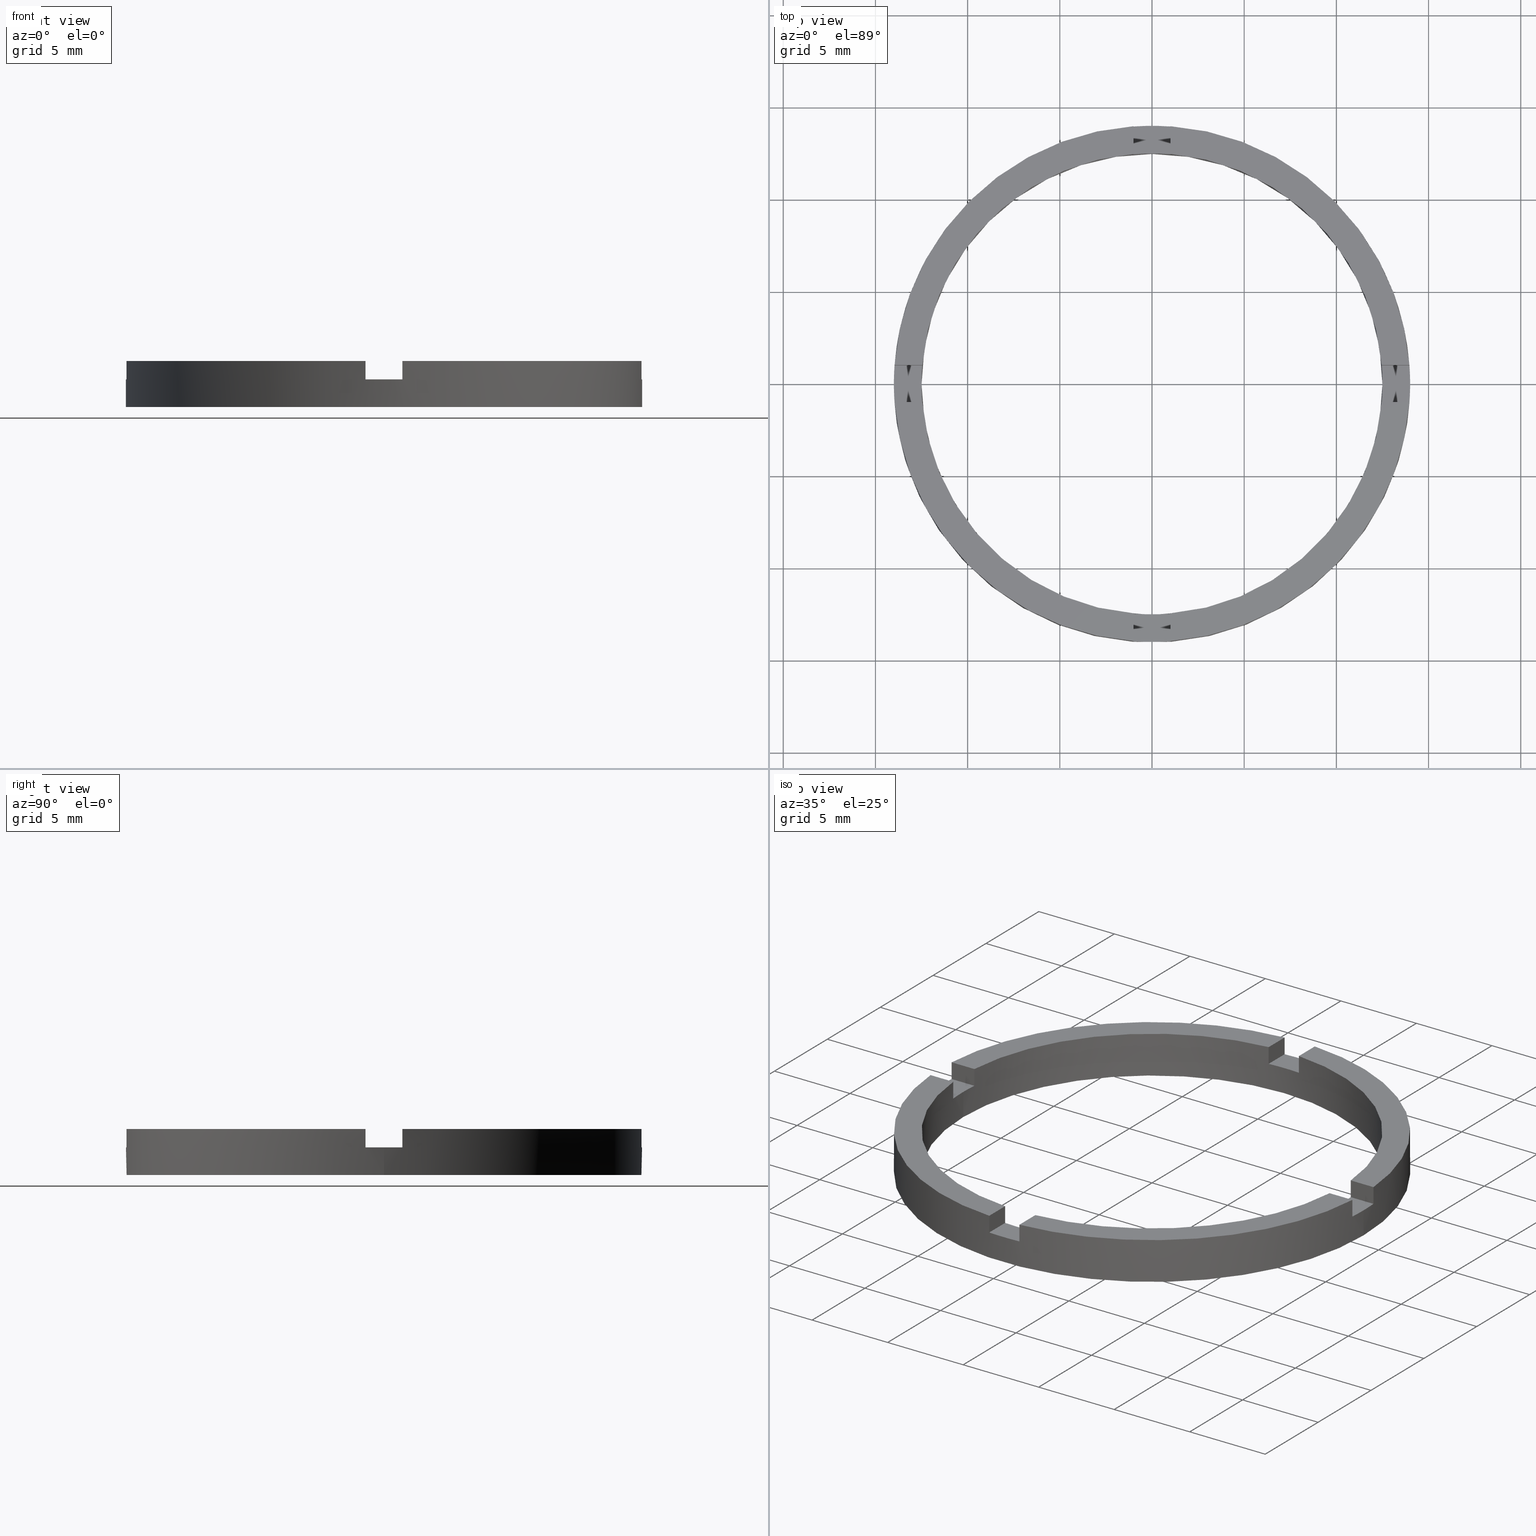
[diagram: canonical four-view strip — front | top / right | iso, engineering-drawing reading convention]
A machine part, canonical four-view strip (front | top / right | iso — engineering-drawing reading convention). The complete STEP part file that produces these views, byte-faithful:
ISO-10303-21;
HEADER;
FILE_DESCRIPTION (( 'STEP AP203' ),
    '1' );
FILE_NAME ('514063.step',
    '2024-12-26T02:34:01',
    ( 'MSI' ),
    ( '' ),
    'SwSTEP 2.0',
    'SolidWorks 2020',
    '' );
FILE_SCHEMA (( 'CONFIG_CONTROL_DESIGN' ));
ENDSEC;

DATA;
#1 = CARTESIAN_POINT ( 'NONE',  ( 0.000000000000000000, 0.000000000000000000, 1.500000000000000000 ) ) ;
#2 = ORIENTED_EDGE ( 'NONE', *, *, #305, .F. ) ;
#3 = DIRECTION ( 'NONE',  ( 0.000000000000000000, 0.000000000000000000, 1.000000000000000000 ) ) ;
#4 = ORIENTED_EDGE ( 'NONE', *, *, #599, .F. ) ;
#5 = AXIS2_PLACEMENT_3D ( 'NONE', #74, #417, #493 ) ;
#6 = EDGE_LOOP ( 'NONE', ( #517, #149, #376, #421 ) ) ;
#7 = DIRECTION ( 'NONE',  ( 0.000000000000000000, 0.000000000000000000, 1.000000000000000000 ) ) ;
#8 = VERTEX_POINT ( 'NONE', #79 ) ;
#9 = DIRECTION ( 'NONE',  ( 1.301042606982605321E-16, -1.000000000000000000, 0.000000000000000000 ) ) ;
#10 = CARTESIAN_POINT ( 'NONE',  ( 0.9999999999999753530, 12.45993579437711674, 1.500000000000000000 ) ) ;
#11 = EDGE_LOOP ( 'NONE', ( #131, #644, #528, #523 ) ) ;
#12 = DIRECTION ( 'NONE',  ( 0.000000000000000000, 0.000000000000000000, 1.000000000000000000 ) ) ;
#13 = DIRECTION ( 'NONE',  ( 1.000000000000000000, 1.734723475976807094E-16, -0.000000000000000000 ) ) ;
#14 = DIRECTION ( 'NONE',  ( 0.000000000000000000, 0.000000000000000000, 1.000000000000000000 ) ) ;
#15 = CC_DESIGN_APPROVAL ( #232, ( #522 ) ) ;
#16 = CARTESIAN_POINT ( 'NONE',  ( 0.9999999999998366862, -13.96424004376895311, 2.500000000000000000 ) ) ;
#17 = CARTESIAN_POINT ( 'NONE',  ( 0.000000000000000000, 0.000000000000000000, 1.500000000000000000 ) ) ;
#18 = DIRECTION ( 'NONE',  ( -0.000000000000000000, -0.000000000000000000, -1.000000000000000000 ) ) ;
#19 = DIRECTION ( 'NONE',  ( 0.000000000000000000, 0.000000000000000000, 1.000000000000000000 ) ) ;
#20 = DIRECTION ( 'NONE',  ( 0.000000000000000000, 0.000000000000000000, 1.000000000000000000 ) ) ;
#21 = DIRECTION ( 'NONE',  ( 0.000000000000000000, 0.000000000000000000, 1.000000000000000000 ) ) ;
#22 = EDGE_CURVE ( 'NONE', #123, #144, #452, .T. ) ;
#23 = CARTESIAN_POINT ( 'NONE',  ( 0.000000000000000000, 0.000000000000000000, 0.000000000000000000 ) ) ;
#24 = EDGE_CURVE ( 'NONE', #386, #441, #661, .T. ) ;
#25 = AXIS2_PLACEMENT_3D ( 'NONE', #210, #20, #349 ) ;
#26 = EDGE_CURVE ( 'NONE', #180, #123, #418, .T. ) ;
#27 = PLANE ( 'NONE',  #747 ) ;
#28 = DIRECTION ( 'NONE',  ( 0.000000000000000000, -0.000000000000000000, 1.000000000000000000 ) ) ;
#29 = DIRECTION ( 'NONE',  ( 0.000000000000000000, 0.000000000000000000, 1.000000000000000000 ) ) ;
#30 = CARTESIAN_POINT ( 'NONE',  ( 0.000000000000000000, 0.000000000000000000, 2.500000000000000000 ) ) ;
#31 = CC_DESIGN_APPROVAL ( #342, ( #281 ) ) ;
#32 = ADVANCED_FACE ( 'NONE', ( #732 ), #483, .F. ) ;
#33 = EDGE_CURVE ( 'NONE', #752, #155, #222, .T. ) ;
#34 = DIRECTION ( 'NONE',  ( 1.000000000000000000, 0.000000000000000000, 0.000000000000000000 ) ) ;
#35 = PLANE ( 'NONE',  #367 ) ;
#36 = DIRECTION ( 'NONE',  ( 0.000000000000000000, 0.000000000000000000, 1.000000000000000000 ) ) ;
#37 = CARTESIAN_POINT ( 'NONE',  ( -13.96424004376894068, -1.000000000000022871, 1.500000000000000000 ) ) ;
#38 = AXIS2_PLACEMENT_3D ( 'NONE', #371, #529, #569 ) ;
#39 = DIRECTION ( 'NONE',  ( 1.301042606982605321E-16, -1.000000000000000000, 0.000000000000000000 ) ) ;
#40 = CARTESIAN_POINT ( 'NONE',  ( 14.00000000000000000, 1.714505518806294638E-15, 1.500000000000000000 ) ) ;
#41 = PLANE ( 'NONE',  #219 ) ;
#42 = CARTESIAN_POINT ( 'NONE',  ( 13.96424004376895311, 0.9999999999998404610, 2.500000000000000000 ) ) ;
#43 = PLANE ( 'NONE',  #738 ) ;
#44 = EDGE_CURVE ( 'NONE', #278, #524, #476, .T. ) ;
#45 = DIRECTION ( 'NONE',  ( 1.000000000000000000, 0.000000000000000000, 0.000000000000000000 ) ) ;
#46 = PLANE ( 'NONE',  #422 ) ;
#47 = AXIS2_PLACEMENT_3D ( 'NONE', #621, #715, #495 ) ;
#48 = DIRECTION ( 'NONE',  ( 0.000000000000000000, 0.000000000000000000, 1.000000000000000000 ) ) ;
#49 = AXIS2_PLACEMENT_3D ( 'NONE', #544, #434, #589 ) ;
#50 = CARTESIAN_POINT ( 'NONE',  ( -12.45993579437711496, 0.9999999999999774625, 2.500000000000000000 ) ) ;
#51 = CARTESIAN_POINT ( 'NONE',  ( -13.96424004376894068, -1.000000000000022871, 2.500000000000000000 ) ) ;
#52 = CARTESIAN_POINT ( 'NONE',  ( 0.000000000000000000, 0.000000000000000000, 1.500000000000000000 ) ) ;
#53 = EDGE_CURVE ( 'NONE', #525, #514, #713, .T. ) ;
#54 = PLANE ( 'NONE',  #693 ) ;
#55 = DIRECTION ( 'NONE',  ( 0.000000000000000000, -0.000000000000000000, 1.000000000000000000 ) ) ;
#56 = CARTESIAN_POINT ( 'NONE',  ( -1.000000000000024647, 12.45993579437711141, 1.500000000000000000 ) ) ;
#57 = PERSON_AND_ORGANIZATION_ROLE ( 'design_owner' ) ;
#58 = EDGE_CURVE ( 'NONE', #441, #231, #734, .T. ) ;
#59 = DIRECTION ( 'NONE',  ( 1.000000000000000000, 0.000000000000000000, -0.000000000000000000 ) ) ;
#60 = ADVANCED_FACE ( 'NONE', ( #214 ), #27, .F. ) ;
#61 = DIRECTION ( 'NONE',  ( -1.000000000000000000, 0.000000000000000000, 0.000000000000000000 ) ) ;
#62 = CC_DESIGN_PERSON_AND_ORGANIZATION_ASSIGNMENT ( #360, #556, ( #522 ) ) ;
#63 = CARTESIAN_POINT ( 'NONE',  ( -1.000000000000024647, 12.45993579437711141, 2.500000000000000000 ) ) ;
#64 = AXIS2_PLACEMENT_3D ( 'NONE', #781, #177, #572 ) ;
#65 = CARTESIAN_POINT ( 'NONE',  ( 0.9999999999999753530, 4.000000000000000000, 1.500000000000000000 ) ) ;
#66 = DIRECTION ( 'NONE',  ( 1.000000000000000000, 0.000000000000000000, 0.000000000000000000 ) ) ;
#67 = EDGE_CURVE ( 'NONE', #488, #233, #718, .T. ) ;
#68 = EDGE_CURVE ( 'NONE', #389, #231, #485, .T. ) ;
#69 = DIRECTION ( 'NONE',  ( 1.000000000000000000, 0.000000000000000000, -0.000000000000000000 ) ) ;
#70 = APPROVAL_DATE_TIME ( #83, #232 ) ;
#71 = CARTESIAN_POINT ( 'NONE',  ( -13.96424004376894246, 0.9999999999999772404, 2.500000000000000000 ) ) ;
#72 = DIRECTION ( 'NONE',  ( 0.000000000000000000, 0.000000000000000000, 1.000000000000000000 ) ) ;
#73 = AXIS2_PLACEMENT_3D ( 'NONE', #538, #28, #290 ) ;
#74 = CARTESIAN_POINT ( 'NONE',  ( 0.000000000000000000, 0.000000000000000000, 1.500000000000000000 ) ) ;
#75 = DIRECTION ( 'NONE',  ( -1.000000000000000000, -4.336808689942017736E-17, 0.000000000000000000 ) ) ;
#76 = CARTESIAN_POINT ( 'NONE',  ( -14.00000000000000000, 0.000000000000000000, 1.500000000000000000 ) ) ;
#77 = ORIENTED_EDGE ( 'NONE', *, *, #462, .F. ) ;
#78 = EDGE_CURVE ( 'NONE', #386, #778, #739, .T. ) ;
#79 = CARTESIAN_POINT ( 'NONE',  ( 12.50000000000000000, 1.530808498934191521E-15, 0.000000000000000000 ) ) ;
#80 = DIRECTION ( 'NONE',  ( 1.000000000000000000, 0.000000000000000000, 0.000000000000000000 ) ) ;
#81 = DIRECTION ( 'NONE',  ( -0.000000000000000000, -0.000000000000000000, -1.000000000000000000 ) ) ;
#82 = DIRECTION ( 'NONE',  ( 1.000000000000000000, 1.734723475976807094E-16, 0.000000000000000000 ) ) ;
#83 = DATE_AND_TIME ( #347, #340 ) ;
#84 = PLANE ( 'NONE',  #561 ) ;
#85 = DIRECTION ( 'NONE',  ( 0.000000000000000000, -0.000000000000000000, 1.000000000000000000 ) ) ;
#86 = LOCAL_TIME ( 10, 34, 1.000000000000000000, #88 ) ;
#87 = EDGE_CURVE ( 'NONE', #745, #394, #216, .T. ) ;
#88 = COORDINATED_UNIVERSAL_TIME_OFFSET ( 8, 0, .AHEAD. ) ;
#89 = CARTESIAN_POINT ( 'NONE',  ( -12.45993579437711141, -1.000000000000022649, 2.500000000000000000 ) ) ;
#90 = CARTESIAN_POINT ( 'NONE',  ( 0.9999999999998354649, -4.000000000000180300, 2.500000000000000000 ) ) ;
#91 = PERSON_AND_ORGANIZATION ( #224, #626 ) ;
#92 = DIRECTION ( 'NONE',  ( -1.000000000000000000, -1.301042606982605321E-16, 0.000000000000000000 ) ) ;
#93 = DATE_AND_TIME ( #363, #86 ) ;
#94 = ORIENTED_EDGE ( 'NONE', *, *, #68, .F. ) ;
#95 = CARTESIAN_POINT ( 'NONE',  ( 0.9999999999998354649, -4.000000000000180300, 1.500000000000000000 ) ) ;
#96 = CARTESIAN_POINT ( 'NONE',  ( -1.000000000000163203, -13.96424004376893002, 2.500000000000000000 ) ) ;
#97 = COORDINATED_UNIVERSAL_TIME_OFFSET ( 8, 0, .AHEAD. ) ;
#98 = CARTESIAN_POINT ( 'NONE',  ( 12.45993579437712739, 0.9999999999998402389, 2.500000000000000000 ) ) ;
#99 = AXIS2_PLACEMENT_3D ( 'NONE', #30, #234, #486 ) ;
#100 = PERSON_AND_ORGANIZATION_ROLE ( 'creator' ) ;
#101 = ORIENTED_EDGE ( 'NONE', *, *, #398, .T. ) ;
#102 = CARTESIAN_POINT ( 'NONE',  ( 0.000000000000000000, 0.000000000000000000, 2.500000000000000000 ) ) ;
#103 = ORIENTED_EDGE ( 'NONE', *, *, #283, .T. ) ;
#104 = PLANE ( 'NONE',  #269 ) ;
#105 = ORIENTED_EDGE ( 'NONE', *, *, #508, .T. ) ;
#106 = ADVANCED_FACE ( 'NONE', ( #722 ), #208, .T. ) ;
#107 = EDGE_CURVE ( 'NONE', #384, #148, #468, .T. ) ;
#108 = APPLICATION_PROTOCOL_DEFINITION ( 'international standard', 'config_control_design', 1994, #510 ) ;
#109 = ORIENTED_EDGE ( 'NONE', *, *, #583, .T. ) ;
#110 = LINE ( 'NONE', #594, #118 ) ;
#111 = CARTESIAN_POINT ( 'NONE',  ( 0.000000000000000000, 0.000000000000000000, 2.500000000000000000 ) ) ;
#112 = CIRCLE ( 'NONE', #116, 14.00000000000000000 ) ;
#113 = EDGE_CURVE ( 'NONE', #123, #268, #227, .T. ) ;
#114 = PERSON_AND_ORGANIZATION ( #224, #626 ) ;
#115 = FACE_OUTER_BOUND ( 'NONE', #665, .T. ) ;
#116 = AXIS2_PLACEMENT_3D ( 'NONE', #111, #316, #359 ) ;
#117 = ORIENTED_EDGE ( 'NONE', *, *, #743, .F. ) ;
#118 = VECTOR ( 'NONE', #518, 1000.000000000000000 ) ;
#119 = ORIENTED_EDGE ( 'NONE', *, *, #58, .T. ) ;
#120 = LINE ( 'NONE', #122, #373 ) ;
#121 = EDGE_LOOP ( 'NONE', ( #261, #698, #348, #631 ) ) ;
#122 = CARTESIAN_POINT ( 'NONE',  ( 12.45993579437710075, -1.000000000000159872, 2.500000000000000000 ) ) ;
#123 = VERTEX_POINT ( 'NONE', #303 ) ;
#124 = EDGE_LOOP ( 'NONE', ( #669, #134, #690, #761 ) ) ;
#125 = ORIENTED_EDGE ( 'NONE', *, *, #562, .T. ) ;
#126 = VECTOR ( 'NONE', #187, 1000.000000000000000 ) ;
#127 = ORIENTED_EDGE ( 'NONE', *, *, #508, .F. ) ;
#128 = FACE_BOUND ( 'NONE', #243, .T. ) ;
#129 = CLOSED_SHELL ( 'NONE', ( #32, #578, #167, #482, #106, #408, #540, #559, #657, #771, #614, #241, #279, #299, #236, #537, #175, #292, #705, #60, #245 ) ) ;
#130 = VECTOR ( 'NONE', #590, 1000.000000000000000 ) ;
#131 = ORIENTED_EDGE ( 'NONE', *, *, #26, .F. ) ;
#132 = AXIS2_PLACEMENT_3D ( 'NONE', #704, #36, #66 ) ;
#133 = COORDINATED_UNIVERSAL_TIME_OFFSET ( 8, 0, .AHEAD. ) ;
#134 = ORIENTED_EDGE ( 'NONE', *, *, #171, .T. ) ;
#135 = ORIENTED_EDGE ( 'NONE', *, *, #447, .T. ) ;
#136 = ORIENTED_EDGE ( 'NONE', *, *, #736, .T. ) ;
#137 = FACE_OUTER_BOUND ( 'NONE', #121, .T. ) ;
#138 = ORIENTED_EDGE ( 'NONE', *, *, #531, .F. ) ;
#139 = CIRCLE ( 'NONE', #541, 12.50000000000000000 ) ;
#140 = ORIENTED_EDGE ( 'NONE', *, *, #628, .F. ) ;
#141 = ORIENTED_EDGE ( 'NONE', *, *, #648, .T. ) ;
#142 = COORDINATED_UNIVERSAL_TIME_OFFSET ( 8, 0, .AHEAD. ) ;
#143 = ORIENTED_EDGE ( 'NONE', *, *, #385, .T. ) ;
#144 = VERTEX_POINT ( 'NONE', #71 ) ;
#145 = VERTEX_POINT ( 'NONE', #42 ) ;
#146 = CARTESIAN_POINT ( 'NONE',  ( -1.000000000000024647, 13.96424004376894068, 1.500000000000000000 ) ) ;
#147 = ORIENTED_EDGE ( 'NONE', *, *, #113, .T. ) ;
#148 = VERTEX_POINT ( 'NONE', #584 ) ;
#149 = ORIENTED_EDGE ( 'NONE', *, *, #769, .F. ) ;
#150 = CARTESIAN_POINT ( 'NONE',  ( -1.000000000000164535, -4.000000000000180300, 1.500000000000000000 ) ) ;
#151 = ORIENTED_EDGE ( 'NONE', *, *, #312, .F. ) ;
#152 = VECTOR ( 'NONE', #13, 1000.000000000000000 ) ;
#153 = FACE_OUTER_BOUND ( 'NONE', #764, .T. ) ;
#154 = ORIENTED_EDGE ( 'NONE', *, *, #680, .F. ) ;
#155 = VERTEX_POINT ( 'NONE', #337 ) ;
#156 = CARTESIAN_POINT ( 'NONE',  ( 12.50000000000000000, 1.530808498934191521E-15, 2.500000000000000000 ) ) ;
#157 = VECTOR ( 'NONE', #622, 1000.000000000000000 ) ;
#158 = ORIENTED_EDGE ( 'NONE', *, *, #322, .T. ) ;
#159 = ORIENTED_EDGE ( 'NONE', *, *, #560, .F. ) ;
#160 = ORIENTED_EDGE ( 'NONE', *, *, #272, .T. ) ;
#161 = CIRCLE ( 'NONE', #480, 14.00000000000000000 ) ;
#162 = ORIENTED_EDGE ( 'NONE', *, *, #782, .F. ) ;
#163 = CIRCLE ( 'NONE', #5, 14.00000000000000000 ) ;
#164 = ORIENTED_EDGE ( 'NONE', *, *, #313, .T. ) ;
#165 = VERTEX_POINT ( 'NONE', #89 ) ;
#166 = DIRECTION ( 'NONE',  ( 1.000000000000000000, 0.000000000000000000, 0.000000000000000000 ) ) ;
#167 = ADVANCED_FACE ( 'NONE', ( #477 ), #574, .T. ) ;
#168 = VECTOR ( 'NONE', #18, 1000.000000000000000 ) ;
#169 = LINE ( 'NONE', #625, #173 ) ;
#170 = CARTESIAN_POINT ( 'NONE',  ( 3.999999999999994671, 0.9999999999998400169, 1.500000000000000000 ) ) ;
#171 = EDGE_CURVE ( 'NONE', #745, #656, #727, .T. ) ;
#172 = DIRECTION ( 'NONE',  ( 0.000000000000000000, 0.000000000000000000, 1.000000000000000000 ) ) ;
#173 = VECTOR ( 'NONE', #9, 1000.000000000000000 ) ;
#174 = CIRCLE ( 'NONE', #260, 12.50000000000000000 ) ;
#175 = ADVANCED_FACE ( 'NONE', ( #478 ), #410, .F. ) ;
#176 = ORIENTED_EDGE ( 'NONE', *, *, #502, .F. ) ;
#177 = DIRECTION ( 'NONE',  ( -0.000000000000000000, -0.000000000000000000, -1.000000000000000000 ) ) ;
#178 = AXIS2_PLACEMENT_3D ( 'NONE', #513, #14, #302 ) ;
#179 = VECTOR ( 'NONE', #81, 1000.000000000000000 ) ;
#180 = VERTEX_POINT ( 'NONE', #579 ) ;
#181 = DIRECTION ( 'NONE',  ( 0.000000000000000000, 0.000000000000000000, 1.000000000000000000 ) ) ;
#182 = VECTOR ( 'NONE', #183, 1000.000000000000000 ) ;
#183 = DIRECTION ( 'NONE',  ( 1.000000000000000000, 4.336808689942017736E-17, 0.000000000000000000 ) ) ;
#184 = VERTEX_POINT ( 'NONE', #632 ) ;
#185 = VECTOR ( 'NONE', #293, 1000.000000000000000 ) ;
#186 = ORIENTED_EDGE ( 'NONE', *, *, #329, .F. ) ;
#187 = DIRECTION ( 'NONE',  ( -0.000000000000000000, -0.000000000000000000, -1.000000000000000000 ) ) ;
#188 = VECTOR ( 'NONE', #328, 1000.000000000000000 ) ;
#189 = VECTOR ( 'NONE', #642, 1000.000000000000000 ) ;
#190 = DIRECTION ( 'NONE',  ( 1.000000000000000000, 0.000000000000000000, 0.000000000000000000 ) ) ;
#191 = CARTESIAN_POINT ( 'NONE',  ( -12.50000000000000000, 0.000000000000000000, 1.500000000000000000 ) ) ;
#192 = DIRECTION ( 'NONE',  ( -1.301042606982605321E-16, 1.000000000000000000, 0.000000000000000000 ) ) ;
#193 = VECTOR ( 'NONE', #721, 1000.000000000000000 ) ;
#194 = VECTOR ( 'NONE', #411, 1000.000000000000000 ) ;
#195 = CARTESIAN_POINT ( 'NONE',  ( -1.000000000000163425, -12.45993579437710075, 1.500000000000000000 ) ) ;
#196 = LINE ( 'NONE', #304, #157 ) ;
#197 = VERTEX_POINT ( 'NONE', #308 ) ;
#198 = CC_DESIGN_SECURITY_CLASSIFICATION ( #281, ( #522 ) ) ;
#199 = CIRCLE ( 'NONE', #685, 12.50000000000000000 ) ;
#200 = CARTESIAN_POINT ( 'NONE',  ( -12.45993579437711141, -1.000000000000022649, 2.500000000000000000 ) ) ;
#201 = DIRECTION ( 'NONE',  ( -0.000000000000000000, -0.000000000000000000, -1.000000000000000000 ) ) ;
#202 = VECTOR ( 'NONE', #401, 1000.000000000000000 ) ;
#203 = CYLINDRICAL_SURFACE ( 'NONE', #563, 14.00000000000000000 ) ;
#204 = DIRECTION ( 'NONE',  ( -0.000000000000000000, -0.000000000000000000, -1.000000000000000000 ) ) ;
#205 = DIRECTION ( 'NONE',  ( -0.000000000000000000, -0.000000000000000000, -1.000000000000000000 ) ) ;
#206 = CIRCLE ( 'NONE', #564, 12.50000000000000000 ) ;
#207 = VECTOR ( 'NONE', #494, 1000.000000000000000 ) ;
#208 = PLANE ( 'NONE',  #244 ) ;
#209 = PERSON_AND_ORGANIZATION_ROLE ( 'classification_officer' ) ;
#210 = CARTESIAN_POINT ( 'NONE',  ( 0.000000000000000000, 0.000000000000000000, 0.000000000000000000 ) ) ;
#211 = VECTOR ( 'NONE', #366, 1000.000000000000000 ) ;
#212 = DIRECTION ( 'NONE',  ( 1.000000000000000000, 0.000000000000000000, 0.000000000000000000 ) ) ;
#213 = LINE ( 'NONE', #95, #207 ) ;
#214 = FACE_OUTER_BOUND ( 'NONE', #670, .T. ) ;
#215 = EDGE_CURVE ( 'NONE', #165, #656, #221, .T. ) ;
#216 = LINE ( 'NONE', #150, #731 ) ;
#217 = CIRCLE ( 'NONE', #602, 12.50000000000000000 ) ;
#218 = VECTOR ( 'NONE', #201, 1000.000000000000000 ) ;
#219 = AXIS2_PLACEMENT_3D ( 'NONE', #601, #3, #69 ) ;
#220 = VECTOR ( 'NONE', #546, 1000.000000000000000 ) ;
#221 = CIRCLE ( 'NONE', #47, 12.50000000000000000 ) ;
#222 = LINE ( 'NONE', #294, #737 ) ;
#223 = ORIENTED_EDGE ( 'NONE', *, *, #44, .T. ) ;
#224 = PERSON ( 'δָ��', 'δָ��', 'δָ��', ('δָ��'), ('δָ��'), ('δָ��') ) ;
#225 = VECTOR ( 'NONE', #29, 1000.000000000000000 ) ;
#226 = DIRECTION ( 'NONE',  ( 1.000000000000000000, -0.000000000000000000, 0.000000000000000000 ) ) ;
#227 = CIRCLE ( 'NONE', #689, 14.00000000000000000 ) ;
#228 = CARTESIAN_POINT ( 'NONE',  ( 0.000000000000000000, 0.000000000000000000, 1.500000000000000000 ) ) ;
#229 = LINE ( 'NONE', #327, #235 ) ;
#230 = CIRCLE ( 'NONE', #286, 14.00000000000000000 ) ;
#231 = VERTEX_POINT ( 'NONE', #343 ) ;
#232 = APPROVAL ( #592, 'δָ��' ) ;
#233 = VERTEX_POINT ( 'NONE', #588 ) ;
#234 = DIRECTION ( 'NONE',  ( -0.000000000000000000, -0.000000000000000000, -1.000000000000000000 ) ) ;
#235 = VECTOR ( 'NONE', #613, 1000.000000000000000 ) ;
#236 = ADVANCED_FACE ( 'NONE', ( #501 ), #484, .T. ) ;
#237 = DIRECTION ( 'NONE',  ( 1.000000000000000000, 4.336808689942017736E-17, 0.000000000000000000 ) ) ;
#238 = CALENDAR_DATE ( 2024, 26, 12 ) ;
#239 = DIRECTION ( 'NONE',  ( -1.000000000000000000, -1.734723475976807094E-16, 0.000000000000000000 ) ) ;
#240 = ORIENTED_EDGE ( 'NONE', *, *, #753, .F. ) ;
#241 = ADVANCED_FACE ( 'NONE', ( #504 ), #41, .T. ) ;
#242 = DIRECTION ( 'NONE',  ( 1.000000000000000000, 0.000000000000000000, -0.000000000000000000 ) ) ;
#243 = EDGE_LOOP ( 'NONE', ( #638, #164 ) ) ;
#244 = AXIS2_PLACEMENT_3D ( 'NONE', #274, #355, #442 ) ;
#245 = ADVANCED_FACE ( 'NONE', ( #491 ), #684, .T. ) ;
#246 = ORIENTED_EDGE ( 'NONE', *, *, #107, .F. ) ;
#247 = CARTESIAN_POINT ( 'NONE',  ( 0.000000000000000000, 0.000000000000000000, 2.500000000000000000 ) ) ;
#248 = CARTESIAN_POINT ( 'NONE',  ( 13.96424004376893002, -1.000000000000159650, 2.500000000000000000 ) ) ;
#249 = CARTESIAN_POINT ( 'NONE',  ( 0.9999999999999753530, 13.96424004376894423, 2.500000000000000000 ) ) ;
#250 = ORIENTED_EDGE ( 'NONE', *, *, #502, .T. ) ;
#251 = EDGE_CURVE ( 'NONE', #515, #165, #229, .T. ) ;
#252 = ORIENTED_EDGE ( 'NONE', *, *, #68, .T. ) ;
#253 = DIRECTION ( 'NONE',  ( 1.000000000000000000, 0.000000000000000000, 0.000000000000000000 ) ) ;
#254 = DIRECTION ( 'NONE',  ( -1.000000000000000000, 0.000000000000000000, 0.000000000000000000 ) ) ;
#255 = ORIENTED_EDGE ( 'NONE', *, *, #272, .F. ) ;
#256 = DIRECTION ( 'NONE',  ( 1.000000000000000000, 4.336808689942017736E-17, 0.000000000000000000 ) ) ;
#257 = CARTESIAN_POINT ( 'NONE',  ( -13.96424004376894068, -1.000000000000022871, 2.500000000000000000 ) ) ;
#258 = EDGE_CURVE ( 'NONE', #197, #427, #746, .T. ) ;
#259 = ORIENTED_EDGE ( 'NONE', *, *, #562, .F. ) ;
#260 = AXIS2_PLACEMENT_3D ( 'NONE', #344, #48, #726 ) ;
#261 = ORIENTED_EDGE ( 'NONE', *, *, #251, .T. ) ;
#262 = ORIENTED_EDGE ( 'NONE', *, *, #736, .F. ) ;
#263 = DIRECTION ( 'NONE',  ( 1.000000000000000000, 0.000000000000000000, 0.000000000000000000 ) ) ;
#264 = CARTESIAN_POINT ( 'NONE',  ( 0.000000000000000000, 0.000000000000000000, 2.500000000000000000 ) ) ;
#265 = ORIENTED_EDGE ( 'NONE', *, *, #251, .F. ) ;
#266 = EDGE_LOOP ( 'NONE', ( #147, #520, #158, #273, #2, #660 ) ) ;
#267 = MECHANICAL_CONTEXT ( 'NONE', #444, 'mechanical' ) ;
#268 = VERTEX_POINT ( 'NONE', #76 ) ;
#269 = AXIS2_PLACEMENT_3D ( 'NONE', #582, #720, #554 ) ;
#270 = DIRECTION ( 'NONE',  ( 1.000000000000000000, 0.000000000000000000, 0.000000000000000000 ) ) ;
#271 = EDGE_LOOP ( 'NONE', ( #154, #437, #246, #109, #350, #250, #415, #511, #760, #377, #598, #464 ) ) ;
#272 = EDGE_CURVE ( 'NONE', #441, #612, #230, .T. ) ;
#273 = ORIENTED_EDGE ( 'NONE', *, *, #67, .F. ) ;
#274 = CARTESIAN_POINT ( 'NONE',  ( 0.000000000000000000, 0.000000000000000000, 2.500000000000000000 ) ) ;
#275 = VERTEX_POINT ( 'NONE', #146 ) ;
#276 = ORIENTED_EDGE ( 'NONE', *, *, #769, .T. ) ;
#277 = DIRECTION ( 'NONE',  ( -0.000000000000000000, -0.000000000000000000, -1.000000000000000000 ) ) ;
#278 = VERTEX_POINT ( 'NONE', #10 ) ;
#279 = ADVANCED_FACE ( 'NONE', ( #497 ), #46, .F. ) ;
#280 = VERTEX_POINT ( 'NONE', #96 ) ;
#281 = SECURITY_CLASSIFICATION ( '', '', #591 ) ;
#282 = ORIENTED_EDGE ( 'NONE', *, *, #289, .T. ) ;
#283 = EDGE_CURVE ( 'NONE', #664, #275, #750, .T. ) ;
#284 = EDGE_CURVE ( 'NONE', #268, #773, #688, .T. ) ;
#285 = DIRECTION ( 'NONE',  ( -0.000000000000000000, 0.000000000000000000, 1.000000000000000000 ) ) ;
#286 = AXIS2_PLACEMENT_3D ( 'NONE', #228, #172, #406 ) ;
#287 = AXIS2_PLACEMENT_3D ( 'NONE', #700, #775, #34 ) ;
#288 = CARTESIAN_POINT ( 'NONE',  ( -4.000000000000185629, -1.000000000000021094, 1.500000000000000000 ) ) ;
#289 = EDGE_CURVE ( 'NONE', #278, #678, #463, .T. ) ;
#290 = DIRECTION ( 'NONE',  ( 1.000000000000000000, 0.000000000000000000, -0.000000000000000000 ) ) ;
#291 = AXIS2_PLACEMENT_3D ( 'NONE', #352, #92, #39 ) ;
#292 = ADVANCED_FACE ( 'NONE', ( #466 ), #84, .T. ) ;
#293 = DIRECTION ( 'NONE',  ( -0.000000000000000000, -0.000000000000000000, -1.000000000000000000 ) ) ;
#294 = CARTESIAN_POINT ( 'NONE',  ( 0.9999999999998366862, -13.96424004376895311, 2.500000000000000000 ) ) ;
#295 = EDGE_CURVE ( 'NONE', #180, #184, #682, .T. ) ;
#296 = CARTESIAN_POINT ( 'NONE',  ( 12.45993579437710075, -1.000000000000159872, 2.500000000000000000 ) ) ;
#297 = DIRECTION ( 'NONE',  ( 1.000000000000000000, 0.000000000000000000, -0.000000000000000000 ) ) ;
#298 = CARTESIAN_POINT ( 'NONE',  ( 13.96424004376895311, 0.9999999999998404610, 2.500000000000000000 ) ) ;
#299 = ADVANCED_FACE ( 'NONE', ( #430 ), #586, .F. ) ;
#300 = CARTESIAN_POINT ( 'NONE',  ( -13.96424004376894246, 0.9999999999999772404, 2.500000000000000000 ) ) ;
#301 = DIRECTION ( 'NONE',  ( 0.000000000000000000, 0.000000000000000000, 1.000000000000000000 ) ) ;
#302 = DIRECTION ( 'NONE',  ( 1.000000000000000000, 0.000000000000000000, 0.000000000000000000 ) ) ;
#303 = CARTESIAN_POINT ( 'NONE',  ( -13.96424004376894246, 0.9999999999999772404, 1.500000000000000000 ) ) ;
#304 = CARTESIAN_POINT ( 'NONE',  ( -4.000000000000185629, 0.9999999999999790168, 2.500000000000000000 ) ) ;
#305 = EDGE_CURVE ( 'NONE', #180, #488, #697, .T. ) ;
#306 = DIRECTION ( 'NONE',  ( 0.000000000000000000, 0.000000000000000000, 1.000000000000000000 ) ) ;
#307 = DIRECTION ( 'NONE',  ( -0.000000000000000000, -0.000000000000000000, -1.000000000000000000 ) ) ;
#308 = CARTESIAN_POINT ( 'NONE',  ( 12.45993579437710075, -1.000000000000159872, 1.500000000000000000 ) ) ;
#309 = CARTESIAN_POINT ( 'NONE',  ( -1.000000000000163425, -12.45993579437710075, 2.500000000000000000 ) ) ;
#310 = CARTESIAN_POINT ( 'NONE',  ( 0.000000000000000000, 0.000000000000000000, 1.500000000000000000 ) ) ;
#311 = DIRECTION ( 'NONE',  ( 0.000000000000000000, 0.000000000000000000, 1.000000000000000000 ) ) ;
#312 = EDGE_CURVE ( 'NONE', #678, #275, #695, .T. ) ;
#313 = EDGE_CURVE ( 'NONE', #8, #770, #199, .T. ) ;
#314 = CARTESIAN_POINT ( 'NONE',  ( 0.000000000000000000, 0.000000000000000000, 0.000000000000000000 ) ) ;
#315 =( NAMED_UNIT ( * ) PLANE_ANGLE_UNIT ( ) SI_UNIT ( $, .RADIAN. ) );
#316 = DIRECTION ( 'NONE',  ( 0.000000000000000000, 0.000000000000000000, 1.000000000000000000 ) ) ;
#317 = AXIS2_PLACEMENT_3D ( 'NONE', #52, #500, #640 ) ;
#318 = PRODUCT_RELATED_PRODUCT_CATEGORY ( 'detail', '', ( #729 ) ) ;
#319 = EDGE_CURVE ( 'NONE', #515, #280, #161, .T. ) ;
#320 = DIRECTION ( 'NONE',  ( -0.000000000000000000, -0.000000000000000000, -1.000000000000000000 ) ) ;
#321 = UNCERTAINTY_MEASURE_WITH_UNIT (LENGTH_MEASURE( 1.000000000000000082E-05 ), #580, 'distance_accuracy_value', 'NONE');
#322 = EDGE_CURVE ( 'NONE', #773, #233, #445, .T. ) ;
#323 = DIRECTION ( 'NONE',  ( 1.301042606982605321E-16, -1.000000000000000000, 0.000000000000000000 ) ) ;
#324 = CARTESIAN_POINT ( 'NONE',  ( 0.000000000000000000, 0.000000000000000000, 1.500000000000000000 ) ) ;
#325 = DIRECTION ( 'NONE',  ( 1.734723475976807094E-16, -1.000000000000000000, 0.000000000000000000 ) ) ;
#326 = AXIS2_PLACEMENT_3D ( 'NONE', #338, #535, #239 ) ;
#327 = CARTESIAN_POINT ( 'NONE',  ( -4.000000000000185629, -1.000000000000021094, 2.500000000000000000 ) ) ;
#328 = DIRECTION ( 'NONE',  ( -1.301042606982605321E-16, 1.000000000000000000, -0.000000000000000000 ) ) ;
#329 = EDGE_CURVE ( 'NONE', #394, #155, #163, .T. ) ;
#330 = CARTESIAN_POINT ( 'NONE',  ( 0.9999999999999753530, 12.45993579437711674, 2.500000000000000000 ) ) ;
#331 = CARTESIAN_POINT ( 'NONE',  ( 0.9999999999999753530, 12.45993579437711674, 2.500000000000000000 ) ) ;
#332 = AXIS2_PLACEMENT_3D ( 'NONE', #1, #55, #448 ) ;
#333 = CARTESIAN_POINT ( 'NONE',  ( 13.96424004376895311, 0.9999999999998404610, 1.500000000000000000 ) ) ;
#334 = DIRECTION ( 'NONE',  ( 0.000000000000000000, 0.000000000000000000, 1.000000000000000000 ) ) ;
#335 = CARTESIAN_POINT ( 'NONE',  ( -4.000000000000185629, -1.000000000000021094, 1.500000000000000000 ) ) ;
#336 = PLANE ( 'NONE',  #439 ) ;
#337 = CARTESIAN_POINT ( 'NONE',  ( 0.9999999999998366862, -13.96424004376895311, 1.500000000000000000 ) ) ;
#338 = CARTESIAN_POINT ( 'NONE',  ( -4.000000000000185629, 0.9999999999999790168, 1.500000000000000000 ) ) ;
#339 = CARTESIAN_POINT ( 'NONE',  ( 12.50000000000000000, 1.530808498934191521E-15, 1.500000000000000000 ) ) ;
#340 = LOCAL_TIME ( 10, 34, 1.000000000000000000, #604 ) ;
#341 = DIRECTION ( 'NONE',  ( 1.000000000000000000, 1.301042606982605321E-16, 0.000000000000000000 ) ) ;
#342 = APPROVAL ( #509, 'δָ��' ) ;
#343 = CARTESIAN_POINT ( 'NONE',  ( 14.00000000000000000, 1.714505518806294638E-15, 0.000000000000000000 ) ) ;
#344 = CARTESIAN_POINT ( 'NONE',  ( 0.000000000000000000, 0.000000000000000000, 1.500000000000000000 ) ) ;
#345 = DIRECTION ( 'NONE',  ( 1.000000000000000000, 0.000000000000000000, -0.000000000000000000 ) ) ;
#346 = CARTESIAN_POINT ( 'NONE',  ( -14.00000000000000000, 0.000000000000000000, 0.000000000000000000 ) ) ;
#347 = CALENDAR_DATE ( 2024, 26, 12 ) ;
#348 = ORIENTED_EDGE ( 'NONE', *, *, #322, .F. ) ;
#349 = DIRECTION ( 'NONE',  ( 1.000000000000000000, 0.000000000000000000, 0.000000000000000000 ) ) ;
#350 = ORIENTED_EDGE ( 'NONE', *, *, #44, .F. ) ;
#351 = APPROVAL_PERSON_ORGANIZATION ( #357, #232, #647 ) ;
#352 = CARTESIAN_POINT ( 'NONE',  ( -1.000000000000164535, -4.000000000000180300, 1.500000000000000000 ) ) ;
#353 = CARTESIAN_POINT ( 'NONE',  ( 0.000000000000000000, 0.000000000000000000, 2.500000000000000000 ) ) ;
#354 = AXIS2_PLACEMENT_3D ( 'NONE', #489, #387, #237 ) ;
#355 = DIRECTION ( 'NONE',  ( 0.000000000000000000, 0.000000000000000000, 1.000000000000000000 ) ) ;
#356 = APPLICATION_PROTOCOL_DEFINITION ( 'international standard', 'config_control_design', 1994, #444 ) ;
#357 = PERSON_AND_ORGANIZATION ( #224, #626 ) ;
#358 = EDGE_CURVE ( 'NONE', #165, #233, #671, .T. ) ;
#359 = DIRECTION ( 'NONE',  ( 1.000000000000000000, 0.000000000000000000, 0.000000000000000000 ) ) ;
#360 = PERSON_AND_ORGANIZATION ( #224, #626 ) ;
#361 = EDGE_CURVE ( 'NONE', #515, #773, #450, .T. ) ;
#362 = AXIS2_PLACEMENT_3D ( 'NONE', #552, #7, #609 ) ;
#363 = CALENDAR_DATE ( 2024, 26, 12 ) ;
#364 = PERSON_AND_ORGANIZATION ( #224, #626 ) ;
#365 = EDGE_CURVE ( 'NONE', #488, #770, #440, .T. ) ;
#366 = DIRECTION ( 'NONE',  ( 0.000000000000000000, 0.000000000000000000, 1.000000000000000000 ) ) ;
#367 = AXIS2_PLACEMENT_3D ( 'NONE', #170, #499, #75 ) ;
#368 = ORIENTED_EDGE ( 'NONE', *, *, #412, .F. ) ;
#369 = ORIENTED_EDGE ( 'NONE', *, *, #319, .F. ) ;
#370 = EDGE_CURVE ( 'NONE', #656, #280, #169, .T. ) ;
#371 = CARTESIAN_POINT ( 'NONE',  ( 0.000000000000000000, 0.000000000000000000, 1.500000000000000000 ) ) ;
#372 = ORIENTED_EDGE ( 'NONE', *, *, #215, .T. ) ;
#373 = VECTOR ( 'NONE', #21, 1000.000000000000000 ) ;
#374 = DIRECTION ( 'NONE',  ( 1.000000000000000000, 0.000000000000000000, 0.000000000000000000 ) ) ;
#375 = CIRCLE ( 'NONE', #49, 12.50000000000000000 ) ;
#376 = ORIENTED_EDGE ( 'NONE', *, *, #710, .F. ) ;
#377 = ORIENTED_EDGE ( 'NONE', *, *, #305, .T. ) ;
#378 = VECTOR ( 'NONE', #479, 1000.000000000000000 ) ;
#379 = ORIENTED_EDGE ( 'NONE', *, *, #258, .T. ) ;
#380 = ORIENTED_EDGE ( 'NONE', *, *, #370, .F. ) ;
#381 = CC_DESIGN_APPROVAL ( #481, ( #469 ) ) ;
#382 = APPROVAL_PERSON_ORGANIZATION ( #114, #481, #516 ) ;
#383 = EDGE_LOOP ( 'NONE', ( #424, #623, #505, #686 ) ) ;
#384 = VERTEX_POINT ( 'NONE', #405 ) ;
#385 = EDGE_CURVE ( 'NONE', #197, #386, #451, .T. ) ;
#386 = VERTEX_POINT ( 'NONE', #577 ) ;
#387 = DIRECTION ( 'NONE',  ( 4.336808689942017736E-17, -1.000000000000000000, 0.000000000000000000 ) ) ;
#388 = PLANE ( 'NONE',  #326 ) ;
#389 = VERTEX_POINT ( 'NONE', #346 ) ;
#390 = VECTOR ( 'NONE', #256, 1000.000000000000000 ) ;
#391 = ORIENTED_EDGE ( 'NONE', *, *, #555, .T. ) ;
#392 = FACE_OUTER_BOUND ( 'NONE', #652, .T. ) ;
#393 = DATE_AND_TIME ( #645, #399 ) ;
#394 = VERTEX_POINT ( 'NONE', #487 ) ;
#395 = LINE ( 'NONE', #575, #378 ) ;
#396 = ORIENTED_EDGE ( 'NONE', *, *, #283, .F. ) ;
#397 = CARTESIAN_POINT ( 'NONE',  ( 3.999999999999994671, 0.9999999999998400169, 1.500000000000000000 ) ) ;
#398 = EDGE_CURVE ( 'NONE', #145, #458, #724, .T. ) ;
#399 = LOCAL_TIME ( 10, 34, 1.000000000000000000, #133 ) ;
#400 = EDGE_LOOP ( 'NONE', ( #759, #125, #758, #774 ) ) ;
#401 = DIRECTION ( 'NONE',  ( -0.000000000000000000, -0.000000000000000000, -1.000000000000000000 ) ) ;
#402 = PERSON_AND_ORGANIZATION ( #224, #626 ) ;
#403 = VECTOR ( 'NONE', #334, 1000.000000000000000 ) ;
#404 = VECTOR ( 'NONE', #703, 1000.000000000000000 ) ;
#405 = CARTESIAN_POINT ( 'NONE',  ( 12.45993579437712739, 0.9999999999998402389, 2.500000000000000000 ) ) ;
#406 = DIRECTION ( 'NONE',  ( 1.000000000000000000, 0.000000000000000000, 0.000000000000000000 ) ) ;
#407 = CALENDAR_DATE ( 2024, 26, 12 ) ;
#408 = ADVANCED_FACE ( 'NONE', ( #711 ), #336, .T. ) ;
#409 = ORIENTED_EDGE ( 'NONE', *, *, #24, .F. ) ;
#410 = PLANE ( 'NONE',  #354 ) ;
#411 = DIRECTION ( 'NONE',  ( -1.000000000000000000, -4.336808689942017736E-17, -0.000000000000000000 ) ) ;
#412 = EDGE_CURVE ( 'NONE', #770, #8, #206, .T. ) ;
#413 = EDGE_LOOP ( 'NONE', ( #135, #754, #672, #396 ) ) ;
#414 = LINE ( 'NONE', #637, #404 ) ;
#415 = ORIENTED_EDGE ( 'NONE', *, *, #53, .F. ) ;
#416 = CARTESIAN_POINT ( 'NONE',  ( 0.000000000000000000, 0.000000000000000000, 1.500000000000000000 ) ) ;
#417 = DIRECTION ( 'NONE',  ( -0.000000000000000000, 0.000000000000000000, 1.000000000000000000 ) ) ;
#418 = LINE ( 'NONE', #600, #714 ) ;
#419 = ORIENTED_EDGE ( 'NONE', *, *, #566, .F. ) ;
#420 = DIRECTION ( 'NONE',  ( -0.000000000000000000, -1.000000000000000000, -0.000000000000000000 ) ) ;
#421 = ORIENTED_EDGE ( 'NONE', *, *, #566, .T. ) ;
#422 = AXIS2_PLACEMENT_3D ( 'NONE', #550, #341, #192 ) ;
#423 = LINE ( 'NONE', #730, #130 ) ;
#424 = ORIENTED_EDGE ( 'NONE', *, *, #329, .T. ) ;
#425 = CARTESIAN_POINT ( 'NONE',  ( -1.000000000000024647, 13.96424004376894068, 2.500000000000000000 ) ) ;
#426 = EDGE_LOOP ( 'NONE', ( #436, #141, #176, #282 ) ) ;
#427 = VERTEX_POINT ( 'NONE', #339 ) ;
#428 = ORIENTED_EDGE ( 'NONE', *, *, #447, .F. ) ;
#429 = ORIENTED_EDGE ( 'NONE', *, *, #319, .T. ) ;
#430 = FACE_OUTER_BOUND ( 'NONE', #124, .T. ) ;
#431 = ORIENTED_EDGE ( 'NONE', *, *, #777, .F. ) ;
#432 = ORIENTED_EDGE ( 'NONE', *, *, #67, .T. ) ;
#433 = EDGE_CURVE ( 'NONE', #664, #144, #472, .T. ) ;
#434 = DIRECTION ( 'NONE',  ( 0.000000000000000000, 0.000000000000000000, 1.000000000000000000 ) ) ;
#435 = ORIENTED_EDGE ( 'NONE', *, *, #680, .T. ) ;
#436 = ORIENTED_EDGE ( 'NONE', *, *, #312, .T. ) ;
#437 = ORIENTED_EDGE ( 'NONE', *, *, #595, .T. ) ;
#438 = CARTESIAN_POINT ( 'NONE',  ( 0.9999999999998365752, -12.45993579437712739, 1.500000000000000000 ) ) ;
#439 = AXIS2_PLACEMENT_3D ( 'NONE', #264, #311, #242 ) ;
#440 = LINE ( 'NONE', #587, #673 ) ;
#441 = VERTEX_POINT ( 'NONE', #40 ) ;
#442 = DIRECTION ( 'NONE',  ( 1.000000000000000000, 0.000000000000000000, -0.000000000000000000 ) ) ;
#443 = PERSON_AND_ORGANIZATION_ROLE ( 'design_supplier' ) ;
#444 = APPLICATION_CONTEXT ( 'configuration controlled 3d designs of mechanical parts and assemblies' ) ;
#445 = LINE ( 'NONE', #335, #152 ) ;
#446 = EDGE_LOOP ( 'NONE', ( #611, #160, #136, #649, #740, #143 ) ) ;
#447 = EDGE_CURVE ( 'NONE', #664, #525, #728, .T. ) ;
#448 = DIRECTION ( 'NONE',  ( 1.000000000000000000, 0.000000000000000000, 0.000000000000000000 ) ) ;
#449 = FACE_OUTER_BOUND ( 'NONE', #11, .T. ) ;
#450 = LINE ( 'NONE', #51, #168 ) ;
#451 = LINE ( 'NONE', #712, #182 ) ;
#452 = LINE ( 'NONE', #300, #403 ) ;
#453 = APPROVAL_ROLE ( '' ) ;
#454 = APPROVAL_STATUS ( 'not_yet_approved' ) ;
#455 = ORIENTED_EDGE ( 'NONE', *, *, #284, .F. ) ;
#456 = FACE_OUTER_BOUND ( 'NONE', #413, .T. ) ;
#457 = CARTESIAN_POINT ( 'NONE',  ( 3.999999999999994671, -1.000000000000160094, 2.500000000000000000 ) ) ;
#458 = VERTEX_POINT ( 'NONE', #249 ) ;
#459 = LINE ( 'NONE', #397, #189 ) ;
#460 = ORIENTED_EDGE ( 'NONE', *, *, #33, .T. ) ;
#461 = LINE ( 'NONE', #707, #194 ) ;
#462 = EDGE_CURVE ( 'NONE', #155, #467, #213, .T. ) ;
#463 = LINE ( 'NONE', #629, #193 ) ;
#464 = ORIENTED_EDGE ( 'NONE', *, *, #313, .F. ) ;
#465 = CIRCLE ( 'NONE', #749, 12.50000000000000000 ) ;
#466 = FACE_OUTER_BOUND ( 'NONE', #446, .T. ) ;
#467 = VERTEX_POINT ( 'NONE', #438 ) ;
#468 = LINE ( 'NONE', #98, #218 ) ;
#469 = PRODUCT_DEFINITION ( 'δ֪', '', #522, #551 ) ;
#470 = EDGE_CURVE ( 'NONE', #394, #280, #475, .T. ) ;
#471 = MANIFOLD_SOLID_BREP ( '�г�-����1', #129 ) ;
#472 = CIRCLE ( 'NONE', #178, 14.00000000000000000 ) ;
#473 = AXIS2_PLACEMENT_3D ( 'NONE', #23, #663, #59 ) ;
#474 = VECTOR ( 'NONE', #565, 1000.000000000000000 ) ;
#475 = LINE ( 'NONE', #506, #719 ) ;
#476 = LINE ( 'NONE', #330, #211 ) ;
#477 = FACE_OUTER_BOUND ( 'NONE', #723, .T. ) ;
#478 = FACE_OUTER_BOUND ( 'NONE', #400, .T. ) ;
#479 = DIRECTION ( 'NONE',  ( 0.000000000000000000, 0.000000000000000000, 1.000000000000000000 ) ) ;
#480 = AXIS2_PLACEMENT_3D ( 'NONE', #102, #618, #263 ) ;
#481 = APPROVAL ( #454, 'δָ��' ) ;
#482 = ADVANCED_FACE ( 'NONE', ( #717 ), #104, .T. ) ;
#483 = CYLINDRICAL_SURFACE ( 'NONE', #99, 12.50000000000000000 ) ;
#484 = PLANE ( 'NONE',  #533 ) ;
#485 = CIRCLE ( 'NONE', #526, 14.00000000000000000 ) ;
#486 = DIRECTION ( 'NONE',  ( -1.000000000000000000, 0.000000000000000000, 0.000000000000000000 ) ) ;
#487 = CARTESIAN_POINT ( 'NONE',  ( -1.000000000000163203, -13.96424004376893002, 1.500000000000000000 ) ) ;
#488 = VERTEX_POINT ( 'NONE', #191 ) ;
#489 = CARTESIAN_POINT ( 'NONE',  ( 3.999999999999994671, -1.000000000000160094, 1.500000000000000000 ) ) ;
#490 = CARTESIAN_POINT ( 'NONE',  ( -1.000000000000024647, 4.000000000000000000, 1.500000000000000000 ) ) ;
#491 = FACE_OUTER_BOUND ( 'NONE', #426, .T. ) ;
#492 = DIRECTION ( 'NONE',  ( 0.000000000000000000, 0.000000000000000000, 1.000000000000000000 ) ) ;
#493 = DIRECTION ( 'NONE',  ( 1.000000000000000000, 0.000000000000000000, 0.000000000000000000 ) ) ;
#494 = DIRECTION ( 'NONE',  ( -1.301042606982605321E-16, 1.000000000000000000, -0.000000000000000000 ) ) ;
#495 = DIRECTION ( 'NONE',  ( 1.000000000000000000, 0.000000000000000000, 0.000000000000000000 ) ) ;
#496 = CARTESIAN_POINT ( 'NONE',  ( 0.9999999999999753530, 13.96424004376894423, 1.500000000000000000 ) ) ;
#497 = FACE_OUTER_BOUND ( 'NONE', #783, .T. ) ;
#498 = ORIENTED_EDGE ( 'NONE', *, *, #531, .T. ) ;
#499 = DIRECTION ( 'NONE',  ( -4.336808689942017736E-17, 1.000000000000000000, 0.000000000000000000 ) ) ;
#500 = DIRECTION ( 'NONE',  ( 0.000000000000000000, 0.000000000000000000, 1.000000000000000000 ) ) ;
#501 = FACE_OUTER_BOUND ( 'NONE', #383, .T. ) ;
#502 = EDGE_CURVE ( 'NONE', #278, #514, #217, .T. ) ;
#503 = CARTESIAN_POINT ( 'NONE',  ( 0.000000000000000000, 0.000000000000000000, 2.500000000000000000 ) ) ;
#504 = FACE_OUTER_BOUND ( 'NONE', #266, .T. ) ;
#505 = ORIENTED_EDGE ( 'NONE', *, *, #555, .F. ) ;
#506 = CARTESIAN_POINT ( 'NONE',  ( -1.000000000000163203, -13.96424004376893002, 2.500000000000000000 ) ) ;
#507 = SHAPE_DEFINITION_REPRESENTATION ( #581, #733 ) ;
#508 = EDGE_CURVE ( 'NONE', #268, #389, #414, .T. ) ;
#509 = APPROVAL_STATUS ( 'not_yet_approved' ) ;
#510 = APPLICATION_CONTEXT ( 'configuration controlled 3d designs of mechanical parts and assemblies' ) ;
#511 = ORIENTED_EDGE ( 'NONE', *, *, #599, .T. ) ;
#512 = ORIENTED_EDGE ( 'NONE', *, *, #470, .T. ) ;
#513 = CARTESIAN_POINT ( 'NONE',  ( 0.000000000000000000, 0.000000000000000000, 2.500000000000000000 ) ) ;
#514 = VERTEX_POINT ( 'NONE', #56 ) ;
#515 = VERTEX_POINT ( 'NONE', #257 ) ;
#516 = APPROVAL_ROLE ( '' ) ;
#517 = ORIENTED_EDGE ( 'NONE', *, *, #570, .F. ) ;
#518 = DIRECTION ( 'NONE',  ( -0.000000000000000000, -0.000000000000000000, -1.000000000000000000 ) ) ;
#519 = ORIENTED_EDGE ( 'NONE', *, *, #78, .T. ) ;
#520 = ORIENTED_EDGE ( 'NONE', *, *, #284, .T. ) ;
#521 = ORIENTED_EDGE ( 'NONE', *, *, #171, .F. ) ;
#522 = PRODUCT_DEFINITION_FORMATION_WITH_SPECIFIED_SOURCE ( '�κ�', '', #729, .NOT_KNOWN. ) ;
#523 = ORIENTED_EDGE ( 'NONE', *, *, #22, .F. ) ;
#524 = VERTEX_POINT ( 'NONE', #331 ) ;
#525 = VERTEX_POINT ( 'NONE', #780 ) ;
#526 = AXIS2_PLACEMENT_3D ( 'NONE', #567, #603, #681 ) ;
#527 = ORIENTED_EDGE ( 'NONE', *, *, #33, .F. ) ;
#528 = ORIENTED_EDGE ( 'NONE', *, *, #628, .T. ) ;
#529 = DIRECTION ( 'NONE',  ( 0.000000000000000000, 0.000000000000000000, 1.000000000000000000 ) ) ;
#530 = VERTEX_POINT ( 'NONE', #296 ) ;
#531 = EDGE_CURVE ( 'NONE', #524, #458, #423, .T. ) ;
#532 = ORIENTED_EDGE ( 'NONE', *, *, #358, .F. ) ;
#533 = AXIS2_PLACEMENT_3D ( 'NONE', #324, #285, #374 ) ;
#534 =( GEOMETRIC_REPRESENTATION_CONTEXT ( 3 ) GLOBAL_UNCERTAINTY_ASSIGNED_CONTEXT ( ( #321 ) ) GLOBAL_UNIT_ASSIGNED_CONTEXT ( ( #580, #315, #741 ) ) REPRESENTATION_CONTEXT ( 'NONE', 'WORKASPACE' ) );
#535 = DIRECTION ( 'NONE',  ( -1.734723475976807094E-16, 1.000000000000000000, 0.000000000000000000 ) ) ;
#536 = DIRECTION ( 'NONE',  ( -1.000000000000000000, -1.734723475976807094E-16, 0.000000000000000000 ) ) ;
#537 = ADVANCED_FACE ( 'NONE', ( #392 ), #35, .F. ) ;
#538 = CARTESIAN_POINT ( 'NONE',  ( 0.000000000000000000, 0.000000000000000000, 1.500000000000000000 ) ) ;
#539 = CARTESIAN_POINT ( 'NONE',  ( 0.9999999999998365752, -12.45993579437712739, 2.500000000000000000 ) ) ;
#540 = ADVANCED_FACE ( 'NONE', ( #651, #128 ), #748, .F. ) ;
#541 = AXIS2_PLACEMENT_3D ( 'NONE', #658, #744, #212 ) ;
#542 = DIRECTION ( 'NONE',  ( 0.000000000000000000, 0.000000000000000000, 1.000000000000000000 ) ) ;
#543 = DIRECTION ( 'NONE',  ( 0.000000000000000000, 0.000000000000000000, 1.000000000000000000 ) ) ;
#544 = CARTESIAN_POINT ( 'NONE',  ( 0.000000000000000000, 0.000000000000000000, 2.500000000000000000 ) ) ;
#545 = CARTESIAN_POINT ( 'NONE',  ( -1.000000000000024647, 13.96424004376894068, 2.500000000000000000 ) ) ;
#546 = DIRECTION ( 'NONE',  ( 0.000000000000000000, 0.000000000000000000, 1.000000000000000000 ) ) ;
#547 = CARTESIAN_POINT ( 'NONE',  ( -1.000000000000024647, 4.000000000000000000, 1.500000000000000000 ) ) ;
#548 = CC_DESIGN_PERSON_AND_ORGANIZATION_ASSIGNMENT ( #91, #209, ( #281 ) ) ;
#549 = DIRECTION ( 'NONE',  ( 1.000000000000000000, 0.000000000000000000, 0.000000000000000000 ) ) ;
#550 = CARTESIAN_POINT ( 'NONE',  ( 0.9999999999998354649, -4.000000000000180300, 1.500000000000000000 ) ) ;
#551 = DESIGN_CONTEXT ( 'detailed design', #510, 'design' ) ;
#552 = CARTESIAN_POINT ( 'NONE',  ( 0.000000000000000000, 0.000000000000000000, 0.000000000000000000 ) ) ;
#553 = CARTESIAN_POINT ( 'NONE',  ( 0.000000000000000000, 0.000000000000000000, 2.500000000000000000 ) ) ;
#554 = DIRECTION ( 'NONE',  ( 1.000000000000000000, 0.000000000000000000, -0.000000000000000000 ) ) ;
#555 = EDGE_CURVE ( 'NONE', #745, #467, #139, .T. ) ;
#556 = PERSON_AND_ORGANIZATION_ROLE ( 'creator' ) ;
#557 = DATE_TIME_ROLE ( 'creation_date' ) ;
#558 = CARTESIAN_POINT ( 'NONE',  ( 0.000000000000000000, 0.000000000000000000, 2.500000000000000000 ) ) ;
#559 = ADVANCED_FACE ( 'NONE', ( #153 ), #620, .T. ) ;
#560 = EDGE_CURVE ( 'NONE', #765, #467, #110, .T. ) ;
#561 = AXIS2_PLACEMENT_3D ( 'NONE', #310, #542, #345 ) ;
#562 = EDGE_CURVE ( 'NONE', #197, #530, #120, .T. ) ;
#563 = AXIS2_PLACEMENT_3D ( 'NONE', #553, #204, #254 ) ;
#564 = AXIS2_PLACEMENT_3D ( 'NONE', #314, #619, #549 ) ;
#565 = DIRECTION ( 'NONE',  ( -0.000000000000000000, -0.000000000000000000, -1.000000000000000000 ) ) ;
#566 = EDGE_CURVE ( 'NONE', #752, #778, #112, .T. ) ;
#567 = CARTESIAN_POINT ( 'NONE',  ( 0.000000000000000000, 0.000000000000000000, 0.000000000000000000 ) ) ;
#568 = CC_DESIGN_PERSON_AND_ORGANIZATION_ASSIGNMENT ( #402, #100, ( #469 ) ) ;
#569 = DIRECTION ( 'NONE',  ( 1.000000000000000000, 0.000000000000000000, 0.000000000000000000 ) ) ;
#570 = EDGE_CURVE ( 'NONE', #530, #778, #624, .T. ) ;
#571 = CARTESIAN_POINT ( 'NONE',  ( -1.000000000000163425, -12.45993579437710075, 2.500000000000000000 ) ) ;
#572 = DIRECTION ( 'NONE',  ( -1.000000000000000000, 0.000000000000000000, 0.000000000000000000 ) ) ;
#573 = CARTESIAN_POINT ( 'NONE',  ( -1.000000000000024647, 4.000000000000000000, 2.500000000000000000 ) ) ;
#574 = PLANE ( 'NONE',  #675 ) ;
#575 = CARTESIAN_POINT ( 'NONE',  ( 0.9999999999999753530, 13.96424004376894423, 2.500000000000000000 ) ) ;
#576 = CARTESIAN_POINT ( 'NONE',  ( 0.000000000000000000, 0.000000000000000000, 0.000000000000000000 ) ) ;
#577 = CARTESIAN_POINT ( 'NONE',  ( 13.96424004376893002, -1.000000000000159650, 1.500000000000000000 ) ) ;
#578 = ADVANCED_FACE ( 'NONE', ( #115 ), #203, .T. ) ;
#579 = CARTESIAN_POINT ( 'NONE',  ( -12.45993579437711496, 0.9999999999999774625, 1.500000000000000000 ) ) ;
#580 =( LENGTH_UNIT ( ) NAMED_UNIT ( * ) SI_UNIT ( .MILLI., .METRE. ) );
#581 = PRODUCT_DEFINITION_SHAPE ( 'NONE', 'NONE',  #469 ) ;
#582 = CARTESIAN_POINT ( 'NONE',  ( 0.000000000000000000, 0.000000000000000000, 2.500000000000000000 ) ) ;
#583 = EDGE_CURVE ( 'NONE', #384, #524, #674, .T. ) ;
#584 = CARTESIAN_POINT ( 'NONE',  ( 12.45993579437712739, 0.9999999999998402389, 1.500000000000000000 ) ) ;
#585 = DIRECTION ( 'NONE',  ( -1.000000000000000000, 0.000000000000000000, 0.000000000000000000 ) ) ;
#586 = PLANE ( 'NONE',  #291 ) ;
#587 = CARTESIAN_POINT ( 'NONE',  ( -12.50000000000000000, 0.000000000000000000, 2.500000000000000000 ) ) ;
#588 = CARTESIAN_POINT ( 'NONE',  ( -12.45993579437711141, -1.000000000000022649, 1.500000000000000000 ) ) ;
#589 = DIRECTION ( 'NONE',  ( 1.000000000000000000, 0.000000000000000000, 0.000000000000000000 ) ) ;
#590 = DIRECTION ( 'NONE',  ( 0.000000000000000000, 1.000000000000000000, 0.000000000000000000 ) ) ;
#591 = SECURITY_CLASSIFICATION_LEVEL ( 'unclassified' ) ;
#592 = APPROVAL_STATUS ( 'not_yet_approved' ) ;
#593 = DATE_AND_TIME ( #407, #655 ) ;
#594 = CARTESIAN_POINT ( 'NONE',  ( 0.9999999999998365752, -12.45993579437712739, 2.500000000000000000 ) ) ;
#595 = EDGE_CURVE ( 'NONE', #427, #148, #174, .T. ) ;
#596 = AXIS2_PLACEMENT_3D ( 'NONE', #416, #492, #709 ) ;
#597 = CC_DESIGN_PERSON_AND_ORGANIZATION_ASSIGNMENT ( #643, #57, ( #729 ) ) ;
#598 = ORIENTED_EDGE ( 'NONE', *, *, #365, .T. ) ;
#599 = EDGE_CURVE ( 'NONE', #525, #184, #465, .T. ) ;
#600 = CARTESIAN_POINT ( 'NONE',  ( -4.000000000000185629, 0.9999999999999790168, 1.500000000000000000 ) ) ;
#601 = CARTESIAN_POINT ( 'NONE',  ( 0.000000000000000000, 0.000000000000000000, 1.500000000000000000 ) ) ;
#602 = AXIS2_PLACEMENT_3D ( 'NONE', #735, #85, #45 ) ;
#603 = DIRECTION ( 'NONE',  ( 0.000000000000000000, 0.000000000000000000, 1.000000000000000000 ) ) ;
#604 = COORDINATED_UNIVERSAL_TIME_OFFSET ( 8, 0, .AHEAD. ) ;
#605 = CARTESIAN_POINT ( 'NONE',  ( 13.96424004376893002, -1.000000000000159650, 2.500000000000000000 ) ) ;
#606 = PERSON_AND_ORGANIZATION ( #224, #626 ) ;
#607 = ORIENTED_EDGE ( 'NONE', *, *, #361, .T. ) ;
#608 = APPROVAL_PERSON_ORGANIZATION ( #364, #342, #453 ) ;
#609 = DIRECTION ( 'NONE',  ( 1.000000000000000000, 0.000000000000000000, 0.000000000000000000 ) ) ;
#610 = CC_DESIGN_DATE_AND_TIME_ASSIGNMENT ( #593, #557, ( #469 ) ) ;
#611 = ORIENTED_EDGE ( 'NONE', *, *, #24, .T. ) ;
#612 = VERTEX_POINT ( 'NONE', #333 ) ;
#613 = DIRECTION ( 'NONE',  ( 1.000000000000000000, 1.734723475976807094E-16, -0.000000000000000000 ) ) ;
#614 = ADVANCED_FACE ( 'NONE', ( #449 ), #388, .F. ) ;
#615 = DIRECTION ( 'NONE',  ( 0.000000000000000000, 0.000000000000000000, 1.000000000000000000 ) ) ;
#616 = ORIENTED_EDGE ( 'NONE', *, *, #433, .F. ) ;
#617 = CARTESIAN_POINT ( 'NONE',  ( 14.00000000000000000, 1.714505518806294638E-15, 2.500000000000000000 ) ) ;
#618 = DIRECTION ( 'NONE',  ( 0.000000000000000000, 0.000000000000000000, 1.000000000000000000 ) ) ;
#619 = DIRECTION ( 'NONE',  ( 0.000000000000000000, 0.000000000000000000, 1.000000000000000000 ) ) ;
#620 = CYLINDRICAL_SURFACE ( 'NONE', #677, 14.00000000000000000 ) ;
#621 = CARTESIAN_POINT ( 'NONE',  ( 0.000000000000000000, 0.000000000000000000, 2.500000000000000000 ) ) ;
#622 = DIRECTION ( 'NONE',  ( -1.000000000000000000, -1.734723475976807094E-16, 0.000000000000000000 ) ) ;
#623 = ORIENTED_EDGE ( 'NONE', *, *, #462, .T. ) ;
#624 = LINE ( 'NONE', #457, #390 ) ;
#625 = CARTESIAN_POINT ( 'NONE',  ( -1.000000000000164535, -4.000000000000180300, 2.500000000000000000 ) ) ;
#626 = ORGANIZATION ( 'δָ��', 'δָ��', '' ) ;
#627 = ORIENTED_EDGE ( 'NONE', *, *, #743, .T. ) ;
#628 = EDGE_CURVE ( 'NONE', #184, #144, #196, .T. ) ;
#629 = CARTESIAN_POINT ( 'NONE',  ( 0.9999999999999753530, 4.000000000000000000, 1.500000000000000000 ) ) ;
#630 = ORIENTED_EDGE ( 'NONE', *, *, #113, .F. ) ;
#631 = ORIENTED_EDGE ( 'NONE', *, *, #361, .F. ) ;
#632 = CARTESIAN_POINT ( 'NONE',  ( -12.45993579437711496, 0.9999999999999774625, 2.500000000000000000 ) ) ;
#633 = DIRECTION ( 'NONE',  ( -0.000000000000000000, -1.000000000000000000, -0.000000000000000000 ) ) ;
#634 = ORIENTED_EDGE ( 'NONE', *, *, #398, .F. ) ;
#635 = ORIENTED_EDGE ( 'NONE', *, *, #289, .F. ) ;
#636 = DIRECTION ( 'NONE',  ( 0.000000000000000000, 0.000000000000000000, 1.000000000000000000 ) ) ;
#637 = CARTESIAN_POINT ( 'NONE',  ( -14.00000000000000000, 0.000000000000000000, 2.500000000000000000 ) ) ;
#638 = ORIENTED_EDGE ( 'NONE', *, *, #412, .T. ) ;
#639 = ORIENTED_EDGE ( 'NONE', *, *, #560, .T. ) ;
#640 = DIRECTION ( 'NONE',  ( 1.000000000000000000, 0.000000000000000000, 0.000000000000000000 ) ) ;
#641 = ORIENTED_EDGE ( 'NONE', *, *, #22, .T. ) ;
#642 = DIRECTION ( 'NONE',  ( -1.000000000000000000, -4.336808689942017736E-17, -0.000000000000000000 ) ) ;
#643 = PERSON_AND_ORGANIZATION ( #224, #626 ) ;
#644 = ORIENTED_EDGE ( 'NONE', *, *, #295, .T. ) ;
#645 = CALENDAR_DATE ( 2024, 26, 12 ) ;
#646 = ORIENTED_EDGE ( 'NONE', *, *, #583, .F. ) ;
#647 = APPROVAL_ROLE ( '' ) ;
#648 = EDGE_CURVE ( 'NONE', #275, #514, #699, .T. ) ;
#649 = ORIENTED_EDGE ( 'NONE', *, *, #595, .F. ) ;
#650 = APPROVAL_DATE_TIME ( #393, #481 ) ;
#651 = FACE_OUTER_BOUND ( 'NONE', #667, .T. ) ;
#652 = EDGE_LOOP ( 'NONE', ( #627, #696, #262, #162 ) ) ;
#653 = CARTESIAN_POINT ( 'NONE',  ( 0.000000000000000000, 0.000000000000000000, 1.500000000000000000 ) ) ;
#654 = DATE_TIME_ROLE ( 'classification_date' ) ;
#655 = LOCAL_TIME ( 10, 34, 1.000000000000000000, #142 ) ;
#656 = VERTEX_POINT ( 'NONE', #309 ) ;
#657 = ADVANCED_FACE ( 'NONE', ( #676 ), #691, .F. ) ;
#658 = CARTESIAN_POINT ( 'NONE',  ( 0.000000000000000000, 0.000000000000000000, 1.500000000000000000 ) ) ;
#659 = LINE ( 'NONE', #298, #126 ) ;
#660 = ORIENTED_EDGE ( 'NONE', *, *, #26, .T. ) ;
#661 = CIRCLE ( 'NONE', #596, 14.00000000000000000 ) ;
#662 = ORIENTED_EDGE ( 'NONE', *, *, #365, .F. ) ;
#663 = DIRECTION ( 'NONE',  ( 0.000000000000000000, 0.000000000000000000, 1.000000000000000000 ) ) ;
#664 = VERTEX_POINT ( 'NONE', #425 ) ;
#665 = EDGE_LOOP ( 'NONE', ( #255, #119, #767, #127, #630, #641, #616, #103, #151, #666, #634, #772 ) ) ;
#666 = ORIENTED_EDGE ( 'NONE', *, *, #777, .T. ) ;
#667 = EDGE_LOOP ( 'NONE', ( #94, #240 ) ) ;
#668 = CC_DESIGN_DATE_AND_TIME_ASSIGNMENT ( #93, #654, ( #281 ) ) ;
#669 = ORIENTED_EDGE ( 'NONE', *, *, #87, .F. ) ;
#670 = EDGE_LOOP ( 'NONE', ( #635, #223, #498, #431 ) ) ;
#671 = LINE ( 'NONE', #200, #179 ) ;
#672 = ORIENTED_EDGE ( 'NONE', *, *, #648, .F. ) ;
#673 = VECTOR ( 'NONE', #205, 1000.000000000000000 ) ;
#674 = CIRCLE ( 'NONE', #287, 12.50000000000000000 ) ;
#675 = AXIS2_PLACEMENT_3D ( 'NONE', #247, #615, #297 ) ;
#676 = FACE_OUTER_BOUND ( 'NONE', #271, .T. ) ;
#677 = AXIS2_PLACEMENT_3D ( 'NONE', #558, #277, #61 ) ;
#678 = VERTEX_POINT ( 'NONE', #496 ) ;
#679 = LINE ( 'NONE', #156, #185 ) ;
#680 = EDGE_CURVE ( 'NONE', #427, #8, #679, .T. ) ;
#681 = DIRECTION ( 'NONE',  ( 1.000000000000000000, 0.000000000000000000, 0.000000000000000000 ) ) ;
#682 = LINE ( 'NONE', #50, #692 ) ;
#683 = LINE ( 'NONE', #90, #188 ) ;
#684 = PLANE ( 'NONE',  #73 ) ;
#685 = AXIS2_PLACEMENT_3D ( 'NONE', #576, #636, #190 ) ;
#686 = ORIENTED_EDGE ( 'NONE', *, *, #87, .T. ) ;
#687 = CIRCLE ( 'NONE', #362, 14.00000000000000000 ) ;
#688 = CIRCLE ( 'NONE', #317, 14.00000000000000000 ) ;
#689 = AXIS2_PLACEMENT_3D ( 'NONE', #653, #19, #253 ) ;
#690 = ORIENTED_EDGE ( 'NONE', *, *, #370, .T. ) ;
#691 = CYLINDRICAL_SURFACE ( 'NONE', #64, 12.50000000000000000 ) ;
#692 = VECTOR ( 'NONE', #301, 1000.000000000000000 ) ;
#693 = AXIS2_PLACEMENT_3D ( 'NONE', #490, #585, #12 ) ;
#694 = EDGE_LOOP ( 'NONE', ( #138, #646, #117, #101 ) ) ;
#695 = CIRCLE ( 'NONE', #332, 14.00000000000000000 ) ;
#696 = ORIENTED_EDGE ( 'NONE', *, *, #107, .T. ) ;
#697 = CIRCLE ( 'NONE', #706, 12.50000000000000000 ) ;
#698 = ORIENTED_EDGE ( 'NONE', *, *, #358, .T. ) ;
#699 = LINE ( 'NONE', #547, #702 ) ;
#700 = CARTESIAN_POINT ( 'NONE',  ( 0.000000000000000000, 0.000000000000000000, 2.500000000000000000 ) ) ;
#701 = ORIENTED_EDGE ( 'NONE', *, *, #710, .T. ) ;
#702 = VECTOR ( 'NONE', #633, 1000.000000000000000 ) ;
#703 = DIRECTION ( 'NONE',  ( -0.000000000000000000, -0.000000000000000000, -1.000000000000000000 ) ) ;
#704 = CARTESIAN_POINT ( 'NONE',  ( 0.000000000000000000, 0.000000000000000000, 1.500000000000000000 ) ) ;
#705 = ADVANCED_FACE ( 'NONE', ( #456 ), #54, .F. ) ;
#706 = AXIS2_PLACEMENT_3D ( 'NONE', #17, #181, #80 ) ;
#707 = CARTESIAN_POINT ( 'NONE',  ( 3.999999999999994671, 0.9999999999998400169, 2.500000000000000000 ) ) ;
#708 = VECTOR ( 'NONE', #420, 1000.000000000000000 ) ;
#709 = DIRECTION ( 'NONE',  ( 1.000000000000000000, 0.000000000000000000, 0.000000000000000000 ) ) ;
#710 = EDGE_CURVE ( 'NONE', #752, #765, #683, .T. ) ;
#711 = FACE_OUTER_BOUND ( 'NONE', #742, .T. ) ;
#712 = CARTESIAN_POINT ( 'NONE',  ( 3.999999999999994671, -1.000000000000160094, 1.500000000000000000 ) ) ;
#713 = LINE ( 'NONE', #63, #202 ) ;
#714 = VECTOR ( 'NONE', #536, 1000.000000000000000 ) ;
#715 = DIRECTION ( 'NONE',  ( 0.000000000000000000, 0.000000000000000000, 1.000000000000000000 ) ) ;
#716 = CARTESIAN_POINT ( 'NONE',  ( -12.50000000000000000, 0.000000000000000000, 0.000000000000000000 ) ) ;
#717 = FACE_OUTER_BOUND ( 'NONE', #694, .T. ) ;
#718 = CIRCLE ( 'NONE', #38, 12.50000000000000000 ) ;
#719 = VECTOR ( 'NONE', #543, 1000.000000000000000 ) ;
#720 = DIRECTION ( 'NONE',  ( 0.000000000000000000, 0.000000000000000000, 1.000000000000000000 ) ) ;
#721 = DIRECTION ( 'NONE',  ( 0.000000000000000000, 1.000000000000000000, 0.000000000000000000 ) ) ;
#722 = FACE_OUTER_BOUND ( 'NONE', #6, .T. ) ;
#723 = EDGE_LOOP ( 'NONE', ( #428, #768, #140, #4 ) ) ;
#724 = CIRCLE ( 'NONE', #756, 14.00000000000000000 ) ;
#725 = CC_DESIGN_PERSON_AND_ORGANIZATION_ASSIGNMENT ( #606, #443, ( #522 ) ) ;
#726 = DIRECTION ( 'NONE',  ( 1.000000000000000000, 0.000000000000000000, 0.000000000000000000 ) ) ;
#727 = LINE ( 'NONE', #571, #220 ) ;
#728 = LINE ( 'NONE', #573, #708 ) ;
#729 = PRODUCT ( '514063', '514063', '', ( #267 ) ) ;
#730 = CARTESIAN_POINT ( 'NONE',  ( 0.9999999999999753530, 4.000000000000000000, 2.500000000000000000 ) ) ;
#731 = VECTOR ( 'NONE', #323, 1000.000000000000000 ) ;
#732 = FACE_OUTER_BOUND ( 'NONE', #755, .T. ) ;
#733 = ADVANCED_BREP_SHAPE_REPRESENTATION ( '514063', ( #471, #25 ), #534 ) ;
#734 = LINE ( 'NONE', #617, #474 ) ;
#735 = CARTESIAN_POINT ( 'NONE',  ( 0.000000000000000000, 0.000000000000000000, 1.500000000000000000 ) ) ;
#736 = EDGE_CURVE ( 'NONE', #612, #148, #459, .T. ) ;
#737 = VECTOR ( 'NONE', #320, 1000.000000000000000 ) ;
#738 = AXIS2_PLACEMENT_3D ( 'NONE', #288, #325, #82 ) ;
#739 = LINE ( 'NONE', #605, #225 ) ;
#740 = ORIENTED_EDGE ( 'NONE', *, *, #258, .F. ) ;
#741 =( NAMED_UNIT ( * ) SI_UNIT ( $, .STERADIAN. ) SOLID_ANGLE_UNIT ( ) );
#742 = EDGE_LOOP ( 'NONE', ( #380, #762, #265, #429 ) ) ;
#743 = EDGE_CURVE ( 'NONE', #145, #384, #461, .T. ) ;
#744 = DIRECTION ( 'NONE',  ( -0.000000000000000000, 0.000000000000000000, 1.000000000000000000 ) ) ;
#745 = VERTEX_POINT ( 'NONE', #195 ) ;
#746 = CIRCLE ( 'NONE', #132, 12.50000000000000000 ) ;
#747 = AXIS2_PLACEMENT_3D ( 'NONE', #65, #226, #766 ) ;
#748 = PLANE ( 'NONE',  #473 ) ;
#749 = AXIS2_PLACEMENT_3D ( 'NONE', #503, #72, #166 ) ;
#750 = LINE ( 'NONE', #545, #751 ) ;
#751 = VECTOR ( 'NONE', #307, 1000.000000000000000 ) ;
#752 = VERTEX_POINT ( 'NONE', #16 ) ;
#753 = EDGE_CURVE ( 'NONE', #231, #389, #687, .T. ) ;
#754 = ORIENTED_EDGE ( 'NONE', *, *, #53, .T. ) ;
#755 = EDGE_LOOP ( 'NONE', ( #379, #435, #368, #662, #432, #532, #372, #521, #391, #159, #276, #259 ) ) ;
#756 = AXIS2_PLACEMENT_3D ( 'NONE', #353, #306, #270 ) ;
#757 = DATE_AND_TIME ( #238, #763 ) ;
#758 = ORIENTED_EDGE ( 'NONE', *, *, #570, .T. ) ;
#759 = ORIENTED_EDGE ( 'NONE', *, *, #385, .F. ) ;
#760 = ORIENTED_EDGE ( 'NONE', *, *, #295, .F. ) ;
#761 = ORIENTED_EDGE ( 'NONE', *, *, #470, .F. ) ;
#762 = ORIENTED_EDGE ( 'NONE', *, *, #215, .F. ) ;
#763 = LOCAL_TIME ( 10, 34, 1.000000000000000000, #97 ) ;
#764 = EDGE_LOOP ( 'NONE', ( #779, #409, #519, #419, #460, #186, #512, #369, #607, #455, #105, #252 ) ) ;
#765 = VERTEX_POINT ( 'NONE', #539 ) ;
#766 = DIRECTION ( 'NONE',  ( 0.000000000000000000, 0.000000000000000000, -1.000000000000000000 ) ) ;
#767 = ORIENTED_EDGE ( 'NONE', *, *, #753, .T. ) ;
#768 = ORIENTED_EDGE ( 'NONE', *, *, #433, .T. ) ;
#769 = EDGE_CURVE ( 'NONE', #765, #530, #375, .T. ) ;
#770 = VERTEX_POINT ( 'NONE', #716 ) ;
#771 = ADVANCED_FACE ( 'NONE', ( #137 ), #43, .F. ) ;
#772 = ORIENTED_EDGE ( 'NONE', *, *, #782, .T. ) ;
#773 = VERTEX_POINT ( 'NONE', #37 ) ;
#774 = ORIENTED_EDGE ( 'NONE', *, *, #78, .F. ) ;
#775 = DIRECTION ( 'NONE',  ( 0.000000000000000000, 0.000000000000000000, 1.000000000000000000 ) ) ;
#776 = APPROVAL_DATE_TIME ( #757, #342 ) ;
#777 = EDGE_CURVE ( 'NONE', #678, #458, #395, .T. ) ;
#778 = VERTEX_POINT ( 'NONE', #248 ) ;
#779 = ORIENTED_EDGE ( 'NONE', *, *, #58, .F. ) ;
#780 = CARTESIAN_POINT ( 'NONE',  ( -1.000000000000024647, 12.45993579437711141, 2.500000000000000000 ) ) ;
#781 = CARTESIAN_POINT ( 'NONE',  ( 0.000000000000000000, 0.000000000000000000, 2.500000000000000000 ) ) ;
#782 = EDGE_CURVE ( 'NONE', #145, #612, #659, .T. ) ;
#783 = EDGE_LOOP ( 'NONE', ( #701, #639, #77, #527 ) ) ;
ENDSEC;
END-ISO-10303-21;
